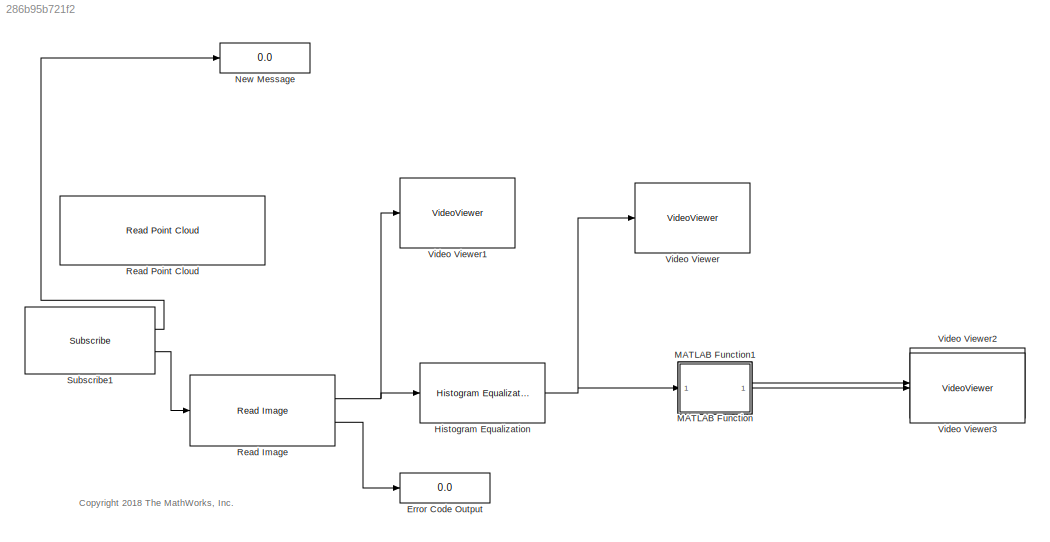
MODEL slx_286b95b721f2
KIND model
CONFIG AbsTol = auto
CONFIG EnableMultiTasking = off
CONFIG FixedStep = auto
CONFIG MaxStep = auto
CONFIG MinStep = auto
CONFIG PreLoadFcn = % ROS setup\nrosshutdown;\nipAddr = '';\nrosinit(ipAddr)\n\n% Sample times\nsampleTime = 0.2;\n
CONFIG RelTol = 1e-3
CONFIG SampleTimeConstraint = Unconstrained
CONFIG Solver = FixedStepAuto
CONFIG SolverName = FixedStepAuto
CONFIG StartTime = 0.0
CONFIG StopTime = inf
WORKSPACE source: MAT-file member
WORKSPACE SL_ROS_VariableLengthArrays_MaxSizes: struct (value not decoded)
BLOCK [Display] Error Code Output
  Decimation = 1
  Ports = [1]
BLOCK [Reference] Histogram Equalization  REF=visionanalysis/Histogram
Equalization
  Ports = [1, 1]
  SourceBlock = visionanalysis/Histogram\nEqualization
  SourceProductBaseCode = VP
  SourceProductName = Computer Vision System Toolbox
  SourceType = Histogram Equalization
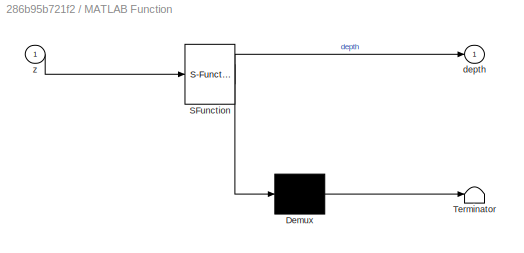
BLOCK [SubSystem] MATLAB Function
  Commented = on
  ErrorFcn = Stateflow.Translate.translate
  PermitHierarchicalResolution = ExplicitOnly
  Ports = [1, 1]
  RequestExecContextInheritance = off
  SFBlockType = MATLAB Function
  TreatAsAtomicUnit = on
BLOCK [Demux] MATLAB Function/ Demux 
  Outputs = 1
  Ports = [1, 1]
BLOCK [S-Function] MATLAB Function/ SFunction 
  EnableBusSupport = on
  FunctionName = sf_sfun
  PortCounts = [1 2]
  Ports = [1, 2]
  SFcnIsStateOwnerBlock = off
  SFunctionDeploymentMode = off
  Tag = Stateflow S-Function ImageTest 2
BLOCK [Terminator] MATLAB Function/ Terminator 
BLOCK [Outport] MATLAB Function/depth
  IconDisplay = Port number
BLOCK [Inport] MATLAB Function/z
  IconDisplay = Port number
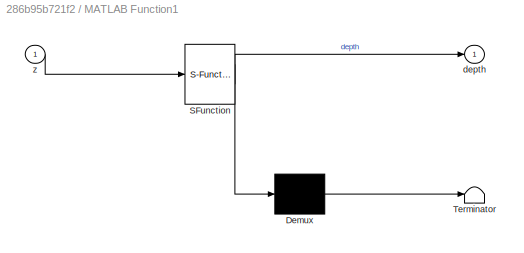
BLOCK [SubSystem] MATLAB Function1
  ErrorFcn = Stateflow.Translate.translate
  PermitHierarchicalResolution = ExplicitOnly
  Ports = [1, 1]
  RequestExecContextInheritance = off
  SFBlockType = MATLAB Function
  TreatAsAtomicUnit = on
BLOCK [Demux] MATLAB Function1/ Demux 
  Outputs = 1
  Ports = [1, 1]
BLOCK [S-Function] MATLAB Function1/ SFunction 
  EnableBusSupport = on
  FunctionName = sf_sfun
  PortCounts = [1 2]
  Ports = [1, 2]
  SFcnIsStateOwnerBlock = off
  SFunctionDeploymentMode = off
  Tag = Stateflow S-Function ImageTest 1
BLOCK [Terminator] MATLAB Function1/ Terminator 
BLOCK [Outport] MATLAB Function1/depth
  IconDisplay = Port number
BLOCK [Inport] MATLAB Function1/z
  IconDisplay = Port number
BLOCK [Display] New Message
  Decimation = 1
  Ports = [1]
BLOCK [Reference] Read Image  REF=robotlib/Read Image
  Ports = [1, 2]
  SourceBlock = robotlib/Read Image
  SourceProductBaseCode = RO
  SourceProductName = Robotics System Toolbox
  SourceType = robotics.slros.internal.block.ReadImage
BLOCK [Reference] Read Point Cloud  REF=robotlib/Read Point Cloud
  Commented = on
  Ports = [1, 2]
  SourceBlock = robotlib/Read Point Cloud
  SourceProductBaseCode = RO
  SourceProductName = Robotics System Toolbox
  SourceType = robotics.slros.internal.block.ReadPointCloud
BLOCK [Reference] Subscribe1  REF=robotlib/Subscribe
  Ports = [0, 2]
  SourceBlock = robotlib/Subscribe
  SourceProductBaseCode = RO
  SourceProductName = Robotics System Toolbox
  SourceType = ROS Subscribe
BLOCK [VideoViewer] Video Viewer
  FigPos = [554 815 573 353]
  Ports = [1]
  ScopeSpecificationString = vipscopes.VideoViewerScopeCfg('CurrentConfiguration', extmgr.ConfigurationSet(extmgr.Configuration('Core','General UI',true),extmgr.Configuration('Core','Source UI',true),extmgr.Configuration('Sources','WiredSimulink',true),extmgr.Configuration('Visuals','Video',true),extmgr.Configuration('Tools','Image Navigation Tools',true),extmgr.Configuration('Tools','Image Tool',true),extmgr.Configuration('T...<+75ch>  <repeated x3 — deduplicated; at blocks: Video Viewer, Video Viewer2, Video Viewer3>
BLOCK [VideoViewer] Video Viewer1
  FigPos = [981 938 901 592]
  Ports = [1]
  ScopeSpecificationString = vipscopes.VideoViewerScopeCfg('CurrentConfiguration', extmgr.ConfigurationSet(extmgr.Configuration('Core','General UI',true),extmgr.Configuration('Core','Source UI',true),extmgr.Configuration('Sources','WiredSimulink',true),extmgr.Configuration('Visuals','Video',true),extmgr.Configuration('Tools','Image Navigation Tools',true),extmgr.Configuration('Tools','Image Tool',true),extmgr.Configuration('T...<+101ch>
BLOCK [VideoViewer] Video Viewer2
  Commented = on
  FigPos = [887 783 583 383]
  Ports = [1]
BLOCK [VideoViewer] Video Viewer3
  FigPos = [887 783 583 383]
  Ports = [1]
ANNOTATION (root): <copyright redacted>
NET Histogram Equalization:1 -> MATLAB Function:1, Video Viewer:1
LINE MATLAB Function1:1 -> Video Viewer3:1
LINE MATLAB Function:1 -> Video Viewer2:1
NET Read Image:1 -> Histogram Equalization:1, Video Viewer1:1
LINE Read Image:2 -> Error Code Output:1
LINE Subscribe1:1 -> New Message:1
LINE Subscribe1:2 -> Read Image:1
note: NET lines group one-source signal fan-out (src -> all destinations, sorted); 1:1 wires keep LINE
CHART MATLAB Function1 states=1 transitions=1
  STATE_LABEL 'eML_blk_kernel()'
  STATE_LABEL "SCRIPT:\nfunction depth = SimpleKalman(z)\n%\n%\n% persistent A H Q R\n% persistent x P\n% persistent firstRun \n% \n% persistent I J \n% persistent M N\n\n\n[M,N] = size(z);\n\ndepth = zeros(M,N);\n\nif isempty (firstRun)\n    A = 1;\n    H = 1;\n\n    Q = 0;\n    R = 4;\n\n    x = 0;\n    P = 6;\n\n    firstRun = 1;\nend\n% x=uint16(x);\n\nfor I=1:M\n    for J = 1:N\n%         z = z(I,J);\n        xp = A*x;\n        Pp = A*P*A'+...<+122ch>"
CHART MATLAB Function states=1 transitions=1
  STATE_LABEL 'eML_blk_kernel()'
  STATE_LABEL "SCRIPT:\nfunction depth = SimpleKalman(z)\n%\n%\n% uint16 A H Q R\n% persistent x P\n% persistent firstRun \n% \n% persistent I J \n% persistent M N\n\n\n[M,N] = size(z);\n\ndepth = zeros(M,N);\n\nif isempty (firstRun)\n    A = 1;\n    H = 1;\n\n    Q = 0;\n    R = 4;\n\n    x = 0;\n    P = 6;\n\n    firstRun = 1;\nend\n% x=uint16(x);\n\nfor I=1:M\n    for J = 1:N\n%         z = z(I,J);\n        xp = A*x;\n        Pp = A*P*A'+Q;\n\n...<+118ch>"
